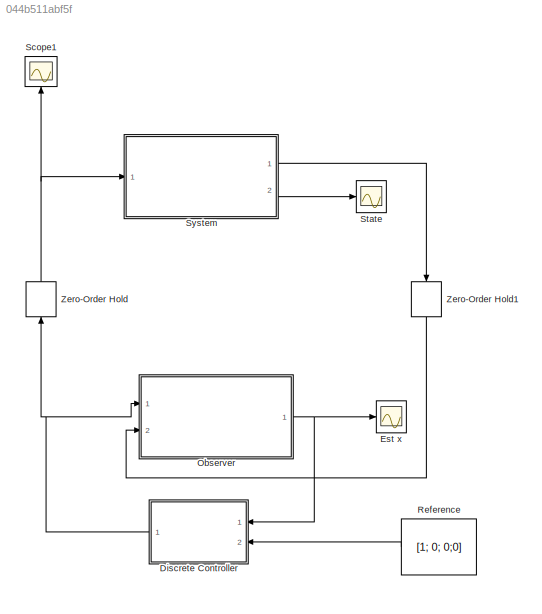
MODEL slx_044b511abf5f
KIND model
CONFIG AbsTol = auto
CONFIG EnableMultiTasking = off
CONFIG FixedStep = auto
CONFIG MaxStep = auto
CONFIG MinStep = auto
CONFIG RelTol = 1e-3
CONFIG SampleTimeConstraint = Unconstrained
CONFIG Solver = VariableStepAuto
CONFIG SolverName = VariableStepAuto
CONFIG StartTime = 0.0
CONFIG StopTime = 10.0
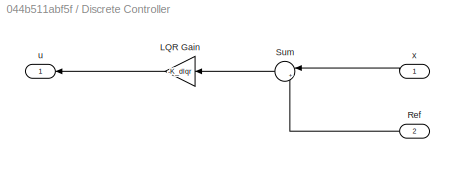
BLOCK [SubSystem] Discrete Controller
  Ports = [2, 1]
  RequestExecContextInheritance = off
BLOCK [Gain] Discrete Controller/LQR Gain
  Gain = -K_dlqr
  Multiplication = Matrix(K*u)
  OutDataTypeStr = Inherit: Inherit via internal rule
  ParamDataTypeStr = Inherit: Inherit via internal rule
  SaturateOnIntegerOverflow = off
BLOCK [Inport] Discrete Controller/Ref
  IconDisplay = Port number
  Port = 2
BLOCK [Sum] Discrete Controller/Sum
  IconShape = round
  InputSameDT = off
  Inputs = |+-
  OutDataTypeStr = Inherit: Inherit via internal rule
  Ports = [2, 1]
  SaturateOnIntegerOverflow = off
BLOCK [Outport] Discrete Controller/u
  IconDisplay = Port number
BLOCK [Inport] Discrete Controller/x
  IconDisplay = Port number
BLOCK [Scope] Est x
  Floating = off
  NumInputPorts = 1
  Ports = [1]
  ScopeSpecificationString = Simulink.scopes.TimeScopeBlockCfg('CurrentConfiguration', extmgr.ConfigurationSet(extmgr.Configuration('Core','General UI',true),extmgr.Configuration('Core','Source UI',true),extmgr.Configuration('Sources','WiredSimulink',true,'DataLoggingVariableName','ScopeData2'),extmgr.Configuration('Visuals','Time Domain',true,'SerializedDisplays',{struct('MinYLimReal','-1.04273','MaxYLimReal','1.31292','YLab...<+1404ch>
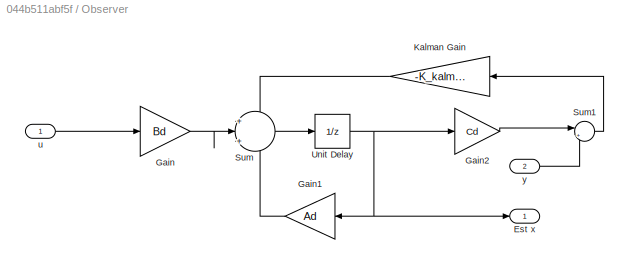
BLOCK [SubSystem] Observer
  Ports = [2, 1]
  RequestExecContextInheritance = off
BLOCK [Outport] Observer/Est x
  IconDisplay = Port number
BLOCK [Gain] Observer/Gain
  Gain = Bd
  Multiplication = Matrix(K*u)
  OutDataTypeStr = Inherit: Inherit via internal rule
  ParamDataTypeStr = Inherit: Inherit via internal rule
  SaturateOnIntegerOverflow = off
BLOCK [Gain] Observer/Gain1
  Gain = Ad
  Multiplication = Matrix(K*u)
  OutDataTypeStr = Inherit: Inherit via internal rule
  ParamDataTypeStr = Inherit: Inherit via internal rule
  SaturateOnIntegerOverflow = off
BLOCK [Gain] Observer/Gain2
  Gain = Cd
  Multiplication = Matrix(K*u)
  OutDataTypeStr = Inherit: Inherit via internal rule
  ParamDataTypeStr = Inherit: Inherit via internal rule
  SaturateOnIntegerOverflow = off
BLOCK [Gain] Observer/Kalman Gain
  Gain = -K_kalman
  OutDataTypeStr = Inherit: Inherit via internal rule
  ParamDataTypeStr = Inherit: Inherit via internal rule
  SaturateOnIntegerOverflow = off
BLOCK [Sum] Observer/Sum
  IconShape = round
  InputSameDT = off
  Inputs = +|++
  OutDataTypeStr = Inherit: Inherit via internal rule
  Ports = [3, 1]
  SaturateOnIntegerOverflow = off
BLOCK [Sum] Observer/Sum1
  IconShape = round
  InputSameDT = off
  Inputs = |+-
  OutDataTypeStr = Inherit: Inherit via internal rule
  Ports = [2, 1]
  SaturateOnIntegerOverflow = off
BLOCK [UnitDelay] Observer/Unit Delay
  InitialCondition = x0*0
  InputProcessing = Elements as channels (sample based)
  SampleTime = -1
BLOCK [Inport] Observer/u
  IconDisplay = Port number
BLOCK [Inport] Observer/y
  IconDisplay = Port number
  Port = 2
BLOCK [Constant] Reference
  Value = [1; 0; 0;0]
BLOCK [Scope] Scope1
  Floating = off
  NumInputPorts = 1
  Ports = [1]
  ScopeSpecificationString = Simulink.scopes.TimeScopeBlockCfg('CurrentConfiguration', extmgr.ConfigurationSet(extmgr.Configuration('Core','General UI',true),extmgr.Configuration('Core','Source UI',true),extmgr.Configuration('Sources','WiredSimulink',true,'DataLoggingVariableName','ScopeData1'),extmgr.Configuration('Visuals','Time Domain',true,'SerializedDisplays',{struct('MinYLimReal','-17.17464','MaxYLimReal','4.04514','YLa...<+1378ch>
BLOCK [Scope] State
  Floating = off
  NumInputPorts = 1
  Ports = [1]
  ScopeSpecificationString = Simulink.scopes.TimeScopeBlockCfg('CurrentConfiguration', extmgr.ConfigurationSet(extmgr.Configuration('Core','General UI',true),extmgr.Configuration('Core','Source UI',true),extmgr.Configuration('Sources','WiredSimulink',true),extmgr.Configuration('Visuals','Time Domain',true,'SerializedDisplays',{struct('MinYLimReal','-0.98105','MaxYLimReal','1.3','YLabelReal','','MinYLimMag','0.00000','MaxYLimM...<+1353ch>
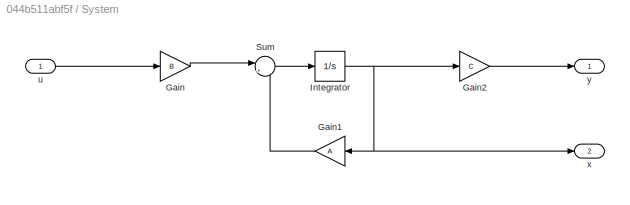
BLOCK [SubSystem] System
  Ports = [1, 2]
  RequestExecContextInheritance = off
BLOCK [Gain] System/Gain
  Gain = B
  Multiplication = Matrix(K*u)
  OutDataTypeStr = Inherit: Inherit via internal rule
  ParamDataTypeStr = Inherit: Inherit via internal rule
  SaturateOnIntegerOverflow = off
BLOCK [Gain] System/Gain1
  Gain = A
  Multiplication = Matrix(K*u)
  OutDataTypeStr = Inherit: Inherit via internal rule
  ParamDataTypeStr = Inherit: Inherit via internal rule
  SaturateOnIntegerOverflow = off
BLOCK [Gain] System/Gain2
  Gain = C
  Multiplication = Matrix(K*u)
  OutDataTypeStr = Inherit: Inherit via internal rule
  ParamDataTypeStr = Inherit: Inherit via internal rule
  SaturateOnIntegerOverflow = off
BLOCK [Integrator] System/Integrator
  InitialCondition = x0
  Ports = [1, 1]
BLOCK [Sum] System/Sum
  IconShape = round
  InputSameDT = off
  Inputs = |++
  OutDataTypeStr = Inherit: Inherit via internal rule
  Ports = [2, 1]
  SaturateOnIntegerOverflow = off
BLOCK [Inport] System/u
  IconDisplay = Port number
BLOCK [Outport] System/x
  IconDisplay = Port number
  Port = 2
BLOCK [Outport] System/y
  IconDisplay = Port number
BLOCK [ZeroOrderHold] Zero-Order Hold
  SampleTime = Ts
BLOCK [ZeroOrderHold] Zero-Order Hold1
  SampleTime = Ts
LINE Discrete Controller/LQR Gain:1 -> Discrete Controller/u:1
LINE Discrete Controller/Ref:1 -> Discrete Controller/Sum:2
LINE Discrete Controller/Sum:1 -> Discrete Controller/LQR Gain:1
LINE Discrete Controller/x:1 -> Discrete Controller/Sum:1
NET Discrete Controller:1 -> Observer:1, Zero-Order Hold:1
LINE Observer/Gain1:1 -> Observer/Sum:3
LINE Observer/Gain2:1 -> Observer/Sum1:1
LINE Observer/Gain:1 -> Observer/Sum:2
LINE Observer/Kalman Gain:1 -> Observer/Sum:1
LINE Observer/Sum1:1 -> Observer/Kalman Gain:1
LINE Observer/Sum:1 -> Observer/Unit Delay:1
NET Observer/Unit Delay:1 -> Observer/Est x:1, Observer/Gain1:1, Observer/Gain2:1
LINE Observer/u:1 -> Observer/Gain:1
LINE Observer/y:1 -> Observer/Sum1:2
NET Observer:1 -> Discrete Controller:1, Est x:1
LINE Reference:1 -> Discrete Controller:2
LINE System/Gain1:1 -> System/Sum:2
LINE System/Gain2:1 -> System/y:1
LINE System/Gain:1 -> System/Sum:1
NET System/Integrator:1 -> System/Gain1:1, System/Gain2:1, System/x:1
LINE System/Sum:1 -> System/Integrator:1
LINE System/u:1 -> System/Gain:1
LINE System:1 -> Zero-Order Hold1:1
LINE System:2 -> State:1
LINE Zero-Order Hold1:1 -> Observer:2
NET Zero-Order Hold:1 -> Scope1:1, System:1
note: NET lines group one-source signal fan-out (src -> all destinations, sorted); 1:1 wires keep LINE
